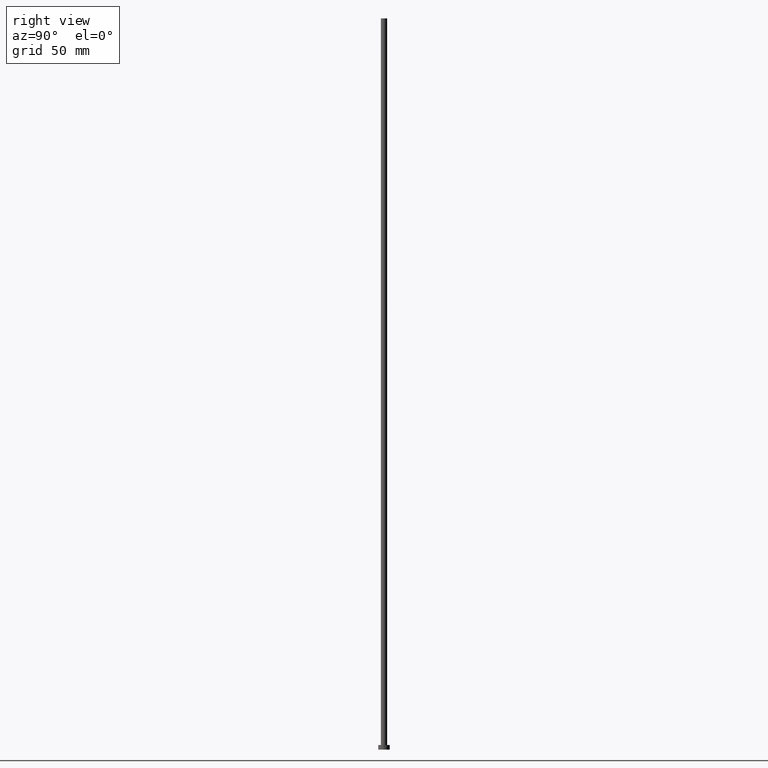
[diagram: clean part render]
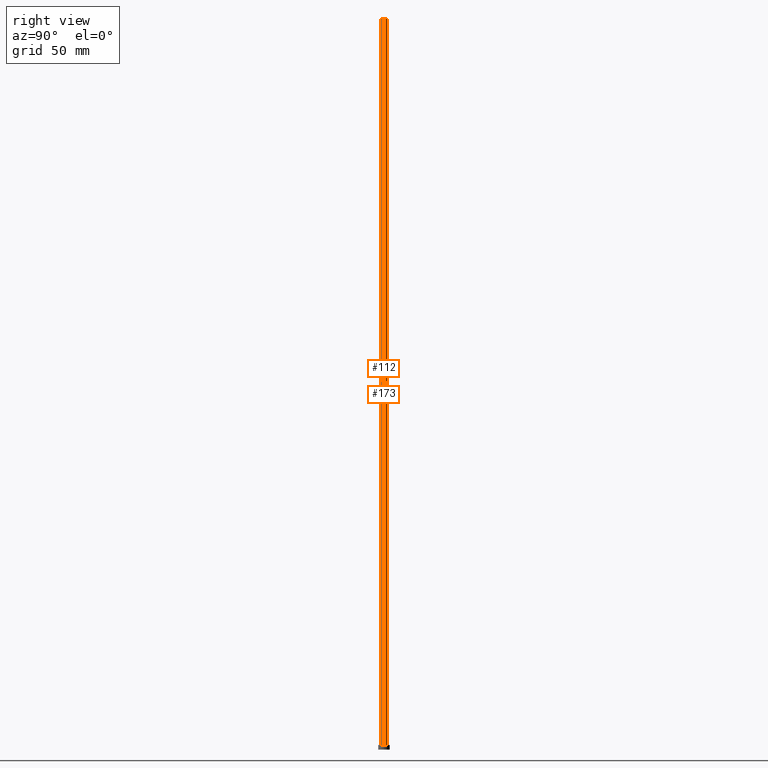
[diagram: same view with one multi-face feature highlighted, each face labeled with its STEP entity id]
A machine part, right view. The highlighted faces form ONE feature: a constant-radius fillet chain: 2 tangent blend faces with common blend radius 1.35 mm. The faces share edges in the B-rep.
Their STEP definitions:
[1] entity #112 (Cylinder):
#12 = VERTEX_POINT ( 'NONE', #126 ) ;
#14 = CARTESIAN_POINT ( 'NONE',  ( 0.000000000000000000, 0.000000000000000000, 315.0000000000000000 ) ) ;
#16 = CIRCLE ( 'NONE', #156, 1.350000000000000089 ) ;
#23 = DIRECTION ( 'NONE',  ( -0.000000000000000000, -0.000000000000000000, -1.000000000000000000 ) ) ;
#26 = VECTOR ( 'NONE', #167, 1000.000000000000000 ) ;
#27 = EDGE_CURVE ( 'NONE', #122, #106, #89, .T. ) ;
#47 = DIRECTION ( 'NONE',  ( 0.000000000000000000, 0.000000000000000000, 1.000000000000000000 ) ) ;
#50 = EDGE_LOOP ( 'NONE', ( #208, #242, #65, #117 ) ) ;
#53 = DIRECTION ( 'NONE',  ( -0.000000000000000000, -0.000000000000000000, -1.000000000000000000 ) ) ;
#60 = AXIS2_PLACEMENT_3D ( 'NONE', #67, #53, #88 ) ;
#63 = VERTEX_POINT ( 'NONE', #153 ) ;
#65 = ORIENTED_EDGE ( 'NONE', *, *, #27, .T. ) ;
#67 = CARTESIAN_POINT ( 'NONE',  ( 0.000000000000000000, 0.000000000000000000, 315.0000000000000000 ) ) ;
#77 = LINE ( 'NONE', #193, #169 ) ;
#84 = DIRECTION ( 'NONE',  ( 1.000000000000000000, 0.000000000000000000, 0.000000000000000000 ) ) ;
#87 = AXIS2_PLACEMENT_3D ( 'NONE', #14, #227, #144 ) ;
#88 = DIRECTION ( 'NONE',  ( -1.000000000000000000, 0.000000000000000000, 0.000000000000000000 ) ) ;
#89 = LINE ( 'NONE', #130, #26 ) ;
#91 = CARTESIAN_POINT ( 'NONE',  ( -1.350000000000000089, 0.000000000000000000, 2.000000000000000000 ) ) ;
#98 = EDGE_CURVE ( 'NONE', #12, #63, #77, .T. ) ;
#106 = VERTEX_POINT ( 'NONE', #91 ) ;
#112 = ADVANCED_FACE ( 'NONE', ( #166 ), #170, .T. ) ;
#114 = EDGE_CURVE ( 'NONE', #122, #12, #154, .T. ) ;
#117 = ORIENTED_EDGE ( 'NONE', *, *, #191, .T. ) ;
#122 = VERTEX_POINT ( 'NONE', #146 ) ;
#126 = CARTESIAN_POINT ( 'NONE',  ( 1.350000000000000089, 1.653273178848926867E-16, 315.0000000000000000 ) ) ;
#130 = CARTESIAN_POINT ( 'NONE',  ( -1.350000000000000089, 0.000000000000000000, 315.0000000000000000 ) ) ;
#143 = CARTESIAN_POINT ( 'NONE',  ( 0.000000000000000000, 0.000000000000000000, 2.000000000000000000 ) ) ;
#144 = DIRECTION ( 'NONE',  ( 1.000000000000000000, 0.000000000000000000, 0.000000000000000000 ) ) ;
#146 = CARTESIAN_POINT ( 'NONE',  ( -1.350000000000000089, 0.000000000000000000, 315.0000000000000000 ) ) ;
#153 = CARTESIAN_POINT ( 'NONE',  ( 1.350000000000000089, 1.653273178848926867E-16, 2.000000000000000000 ) ) ;
#154 = CIRCLE ( 'NONE', #87, 1.350000000000000089 ) ;
#156 = AXIS2_PLACEMENT_3D ( 'NONE', #143, #47, #84 ) ;
#166 = FACE_OUTER_BOUND ( 'NONE', #50, .T. ) ;
#167 = DIRECTION ( 'NONE',  ( -0.000000000000000000, -0.000000000000000000, -1.000000000000000000 ) ) ;
#169 = VECTOR ( 'NONE', #23, 1000.000000000000000 ) ;
#170 = CYLINDRICAL_SURFACE ( 'NONE', #60, 1.350000000000000089 ) ;
#191 = EDGE_CURVE ( 'NONE', #106, #63, #16, .T. ) ;
#193 = CARTESIAN_POINT ( 'NONE',  ( 1.350000000000000089, 1.653273178848926867E-16, 315.0000000000000000 ) ) ;
#208 = ORIENTED_EDGE ( 'NONE', *, *, #98, .F. ) ;
#227 = DIRECTION ( 'NONE',  ( 0.000000000000000000, 0.000000000000000000, 1.000000000000000000 ) ) ;
#242 = ORIENTED_EDGE ( 'NONE', *, *, #114, .F. ) ;
[2] entity #173 (Cylinder):
#8 = ORIENTED_EDGE ( 'NONE', *, *, #137, .F. ) ;
#10 = CIRCLE ( 'NONE', #44, 1.350000000000000089 ) ;
#11 = DIRECTION ( 'NONE',  ( 1.000000000000000000, 0.000000000000000000, 0.000000000000000000 ) ) ;
#12 = VERTEX_POINT ( 'NONE', #126 ) ;
#21 = AXIS2_PLACEMENT_3D ( 'NONE', #255, #234, #76 ) ;
#23 = DIRECTION ( 'NONE',  ( -0.000000000000000000, -0.000000000000000000, -1.000000000000000000 ) ) ;
#26 = VECTOR ( 'NONE', #167, 1000.000000000000000 ) ;
#27 = EDGE_CURVE ( 'NONE', #122, #106, #89, .T. ) ;
#35 = FACE_OUTER_BOUND ( 'NONE', #181, .T. ) ;
#44 = AXIS2_PLACEMENT_3D ( 'NONE', #51, #230, #11 ) ;
#51 = CARTESIAN_POINT ( 'NONE',  ( 0.000000000000000000, 0.000000000000000000, 315.0000000000000000 ) ) ;
#63 = VERTEX_POINT ( 'NONE', #153 ) ;
#76 = DIRECTION ( 'NONE',  ( 1.000000000000000000, 0.000000000000000000, 0.000000000000000000 ) ) ;
#77 = LINE ( 'NONE', #193, #169 ) ;
#82 = ORIENTED_EDGE ( 'NONE', *, *, #27, .F. ) ;
#89 = LINE ( 'NONE', #130, #26 ) ;
#91 = CARTESIAN_POINT ( 'NONE',  ( -1.350000000000000089, 0.000000000000000000, 2.000000000000000000 ) ) ;
#92 = AXIS2_PLACEMENT_3D ( 'NONE', #185, #226, #161 ) ;
#98 = EDGE_CURVE ( 'NONE', #12, #63, #77, .T. ) ;
#99 = EDGE_CURVE ( 'NONE', #63, #106, #240, .T. ) ;
#105 = CYLINDRICAL_SURFACE ( 'NONE', #92, 1.350000000000000089 ) ;
#106 = VERTEX_POINT ( 'NONE', #91 ) ;
#122 = VERTEX_POINT ( 'NONE', #146 ) ;
#126 = CARTESIAN_POINT ( 'NONE',  ( 1.350000000000000089, 1.653273178848926867E-16, 315.0000000000000000 ) ) ;
#130 = CARTESIAN_POINT ( 'NONE',  ( -1.350000000000000089, 0.000000000000000000, 315.0000000000000000 ) ) ;
#137 = EDGE_CURVE ( 'NONE', #12, #122, #10, .T. ) ;
#146 = CARTESIAN_POINT ( 'NONE',  ( -1.350000000000000089, 0.000000000000000000, 315.0000000000000000 ) ) ;
#153 = CARTESIAN_POINT ( 'NONE',  ( 1.350000000000000089, 1.653273178848926867E-16, 2.000000000000000000 ) ) ;
#161 = DIRECTION ( 'NONE',  ( -1.000000000000000000, 0.000000000000000000, 0.000000000000000000 ) ) ;
#167 = DIRECTION ( 'NONE',  ( -0.000000000000000000, -0.000000000000000000, -1.000000000000000000 ) ) ;
#169 = VECTOR ( 'NONE', #23, 1000.000000000000000 ) ;
#173 = ADVANCED_FACE ( 'NONE', ( #35 ), #105, .T. ) ;
#181 = EDGE_LOOP ( 'NONE', ( #8, #248, #200, #82 ) ) ;
#185 = CARTESIAN_POINT ( 'NONE',  ( 0.000000000000000000, 0.000000000000000000, 315.0000000000000000 ) ) ;
#193 = CARTESIAN_POINT ( 'NONE',  ( 1.350000000000000089, 1.653273178848926867E-16, 315.0000000000000000 ) ) ;
#200 = ORIENTED_EDGE ( 'NONE', *, *, #99, .T. ) ;
#226 = DIRECTION ( 'NONE',  ( -0.000000000000000000, -0.000000000000000000, -1.000000000000000000 ) ) ;
#230 = DIRECTION ( 'NONE',  ( 0.000000000000000000, 0.000000000000000000, 1.000000000000000000 ) ) ;
#234 = DIRECTION ( 'NONE',  ( 0.000000000000000000, 0.000000000000000000, 1.000000000000000000 ) ) ;
#240 = CIRCLE ( 'NONE', #21, 1.350000000000000089 ) ;
#248 = ORIENTED_EDGE ( 'NONE', *, *, #98, .T. ) ;
#255 = CARTESIAN_POINT ( 'NONE',  ( 0.000000000000000000, 0.000000000000000000, 2.000000000000000000 ) ) ;